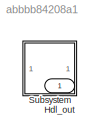
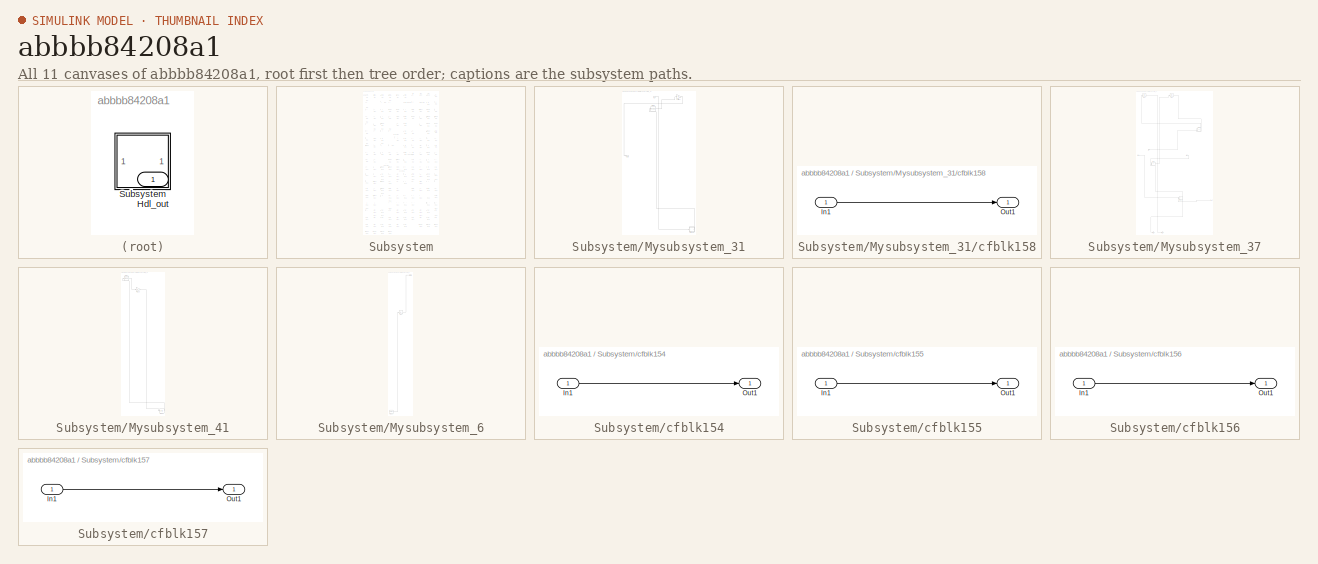
[diagram: thumbnail index - all 11 canvases of the model, root first then tree order]
MODEL slx_abbbb84208a1
KIND model
CONFIG AbsTol = auto
CONFIG EnableMultiTasking = off
CONFIG FixedStep = auto
CONFIG MaxStep = auto
CONFIG MinStep = auto
CONFIG RelTol = 1e-3
CONFIG SampleTimeConstraint = Unconstrained
CONFIG SolverName = VariableStepAuto
CONFIG StartTime = 0.0
CONFIG StopTime = 10.0
BLOCK [Outport] Hdl_out
  OutDataTypeStr = uint8
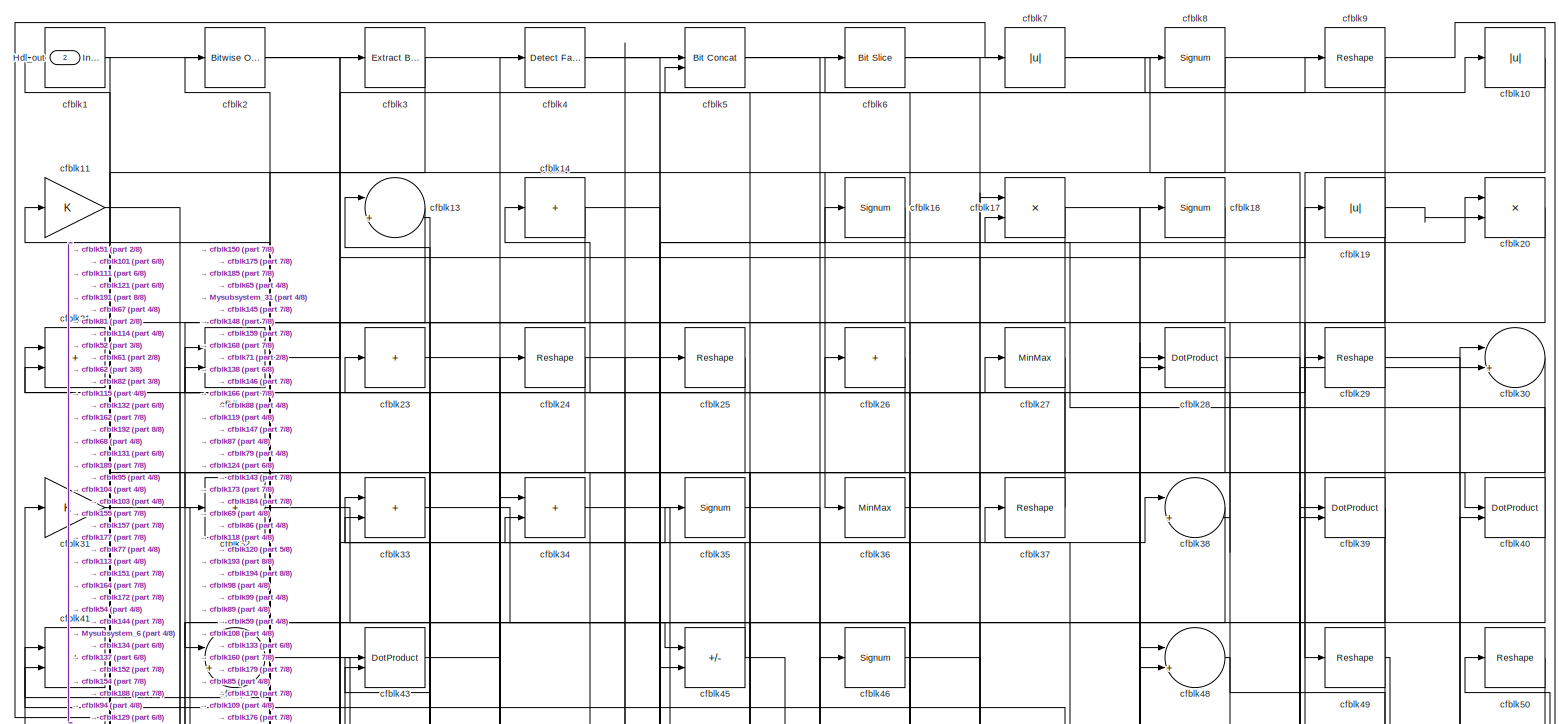
[diagram: Subsystem - part 1/8, full width, top band]
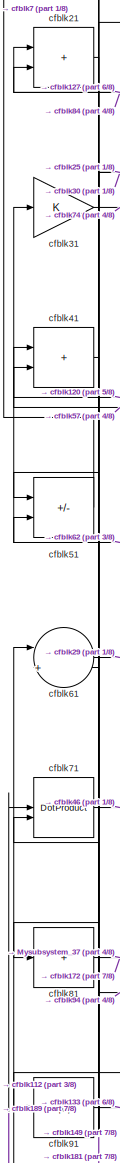
[diagram: Subsystem - part 2/8, top left region]
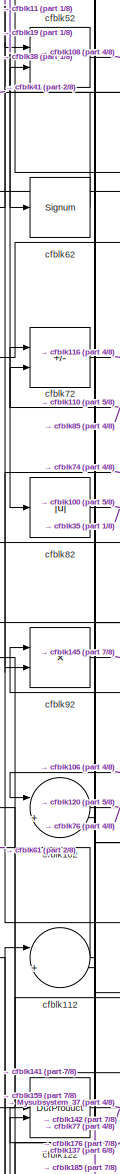
[diagram: Subsystem - part 3/8, middle left region]
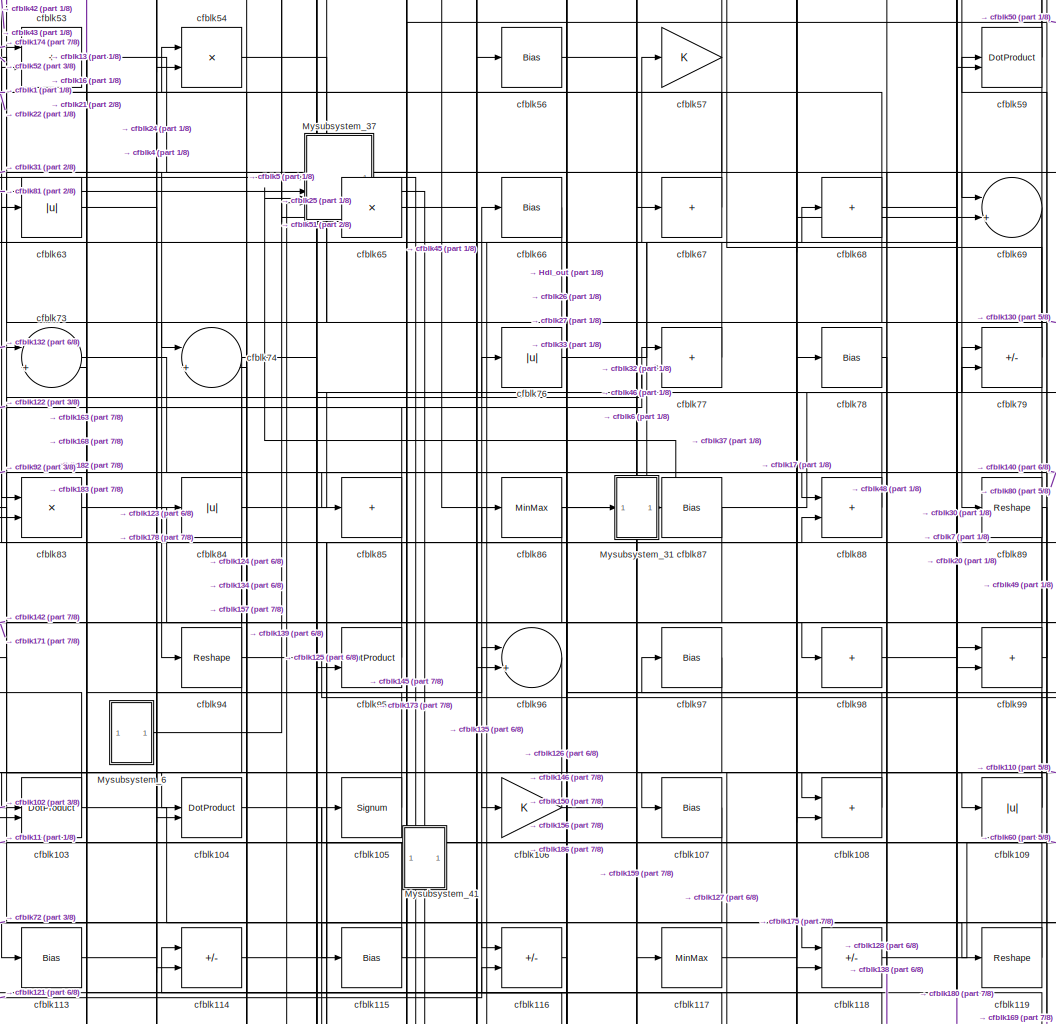
[diagram: Subsystem - part 4/8, central region]
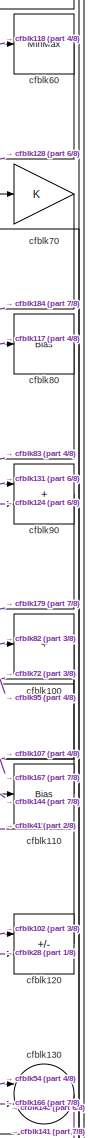
[diagram: Subsystem - part 5/8, middle right region]
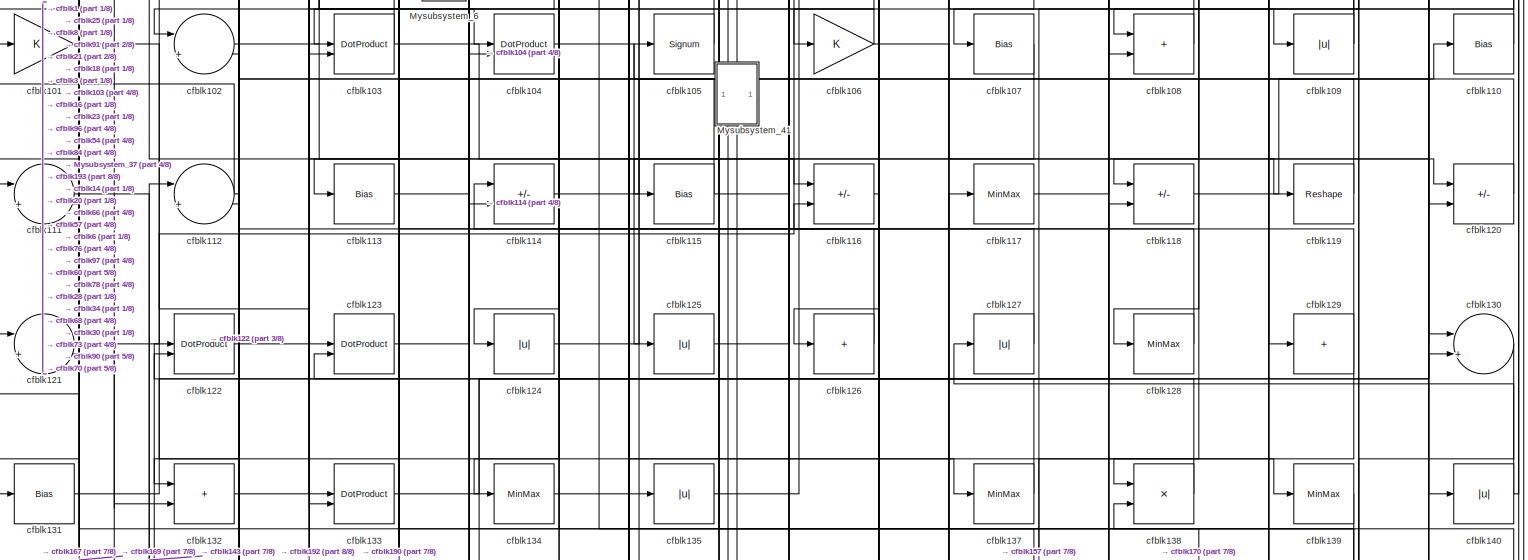
[diagram: Subsystem - part 6/8, full width, middle band]
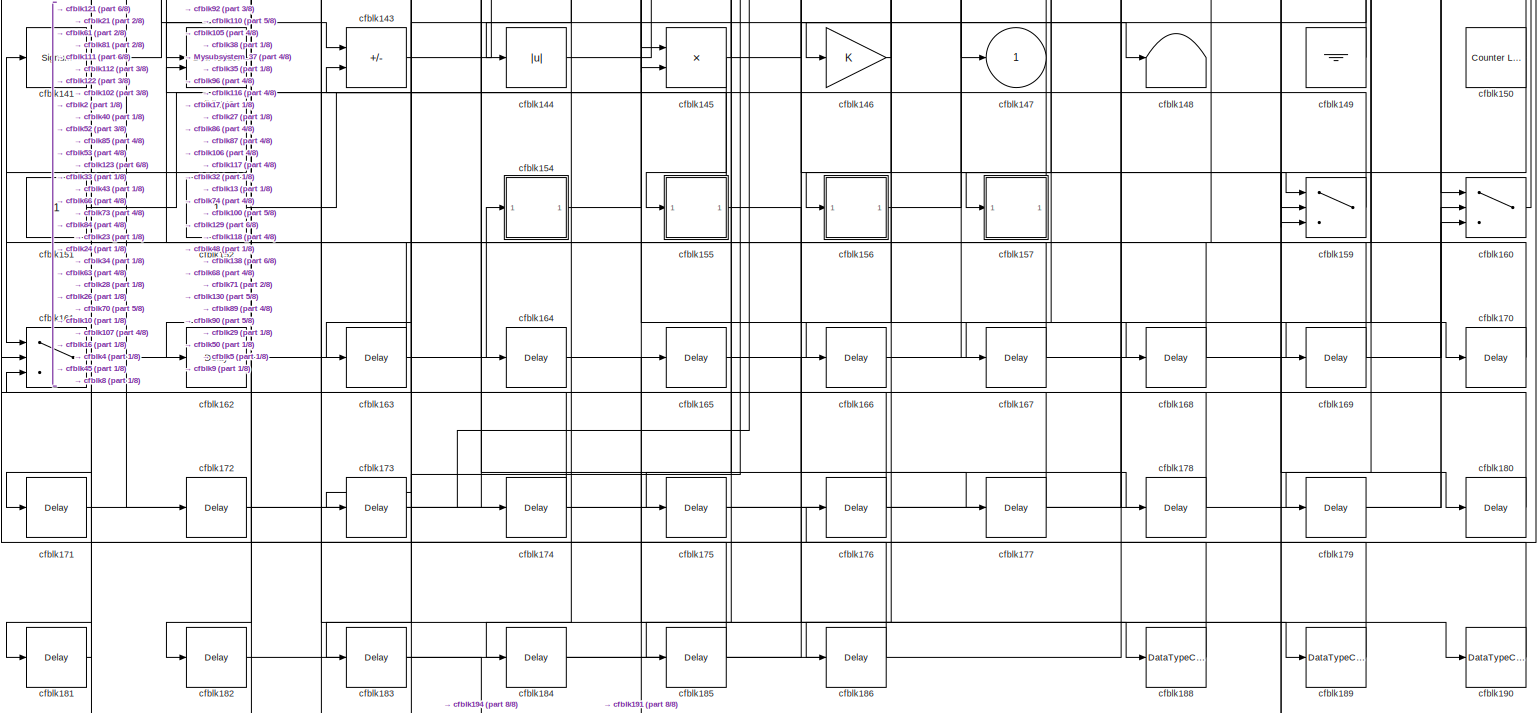
[diagram: Subsystem - part 7/8, full width, bottom band]
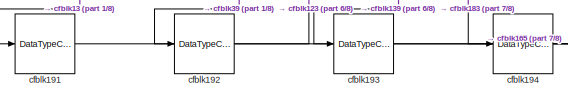
[diagram: Subsystem - part 8/8, bottom left region]
BLOCK [SubSystem] Subsystem
BLOCK [Outport] Subsystem/Hdl_out
  OutDataTypeStr = uint8
  Port = 2
BLOCK [SubSystem] Subsystem/Mysubsystem_31
  RTWFcnName = Mysubsystem_31
  RTWFcnNameOpts = User specified
  RTWFileNameOpts = Use function name
  RTWSystemCode = Reusable function
  TreatAsAtomicUnit = on
BLOCK [Inport] Subsystem/Mysubsystem_31/In1
BLOCK [Outport] Subsystem/Mysubsystem_31/Out1
BLOCK [SubSystem] Subsystem/Mysubsystem_31/cfblk158
  LibrarySourceBlock = hdlsllib/Ports &\nSubsystems/Subsystem
BLOCK [Inport] Subsystem/Mysubsystem_31/cfblk158/In1
BLOCK [Outport] Subsystem/Mysubsystem_31/cfblk158/Out1
BLOCK [Gain] Subsystem/Mysubsystem_31/cfblk47
BLOCK [Reshape] Subsystem/Mysubsystem_31/cfblk55
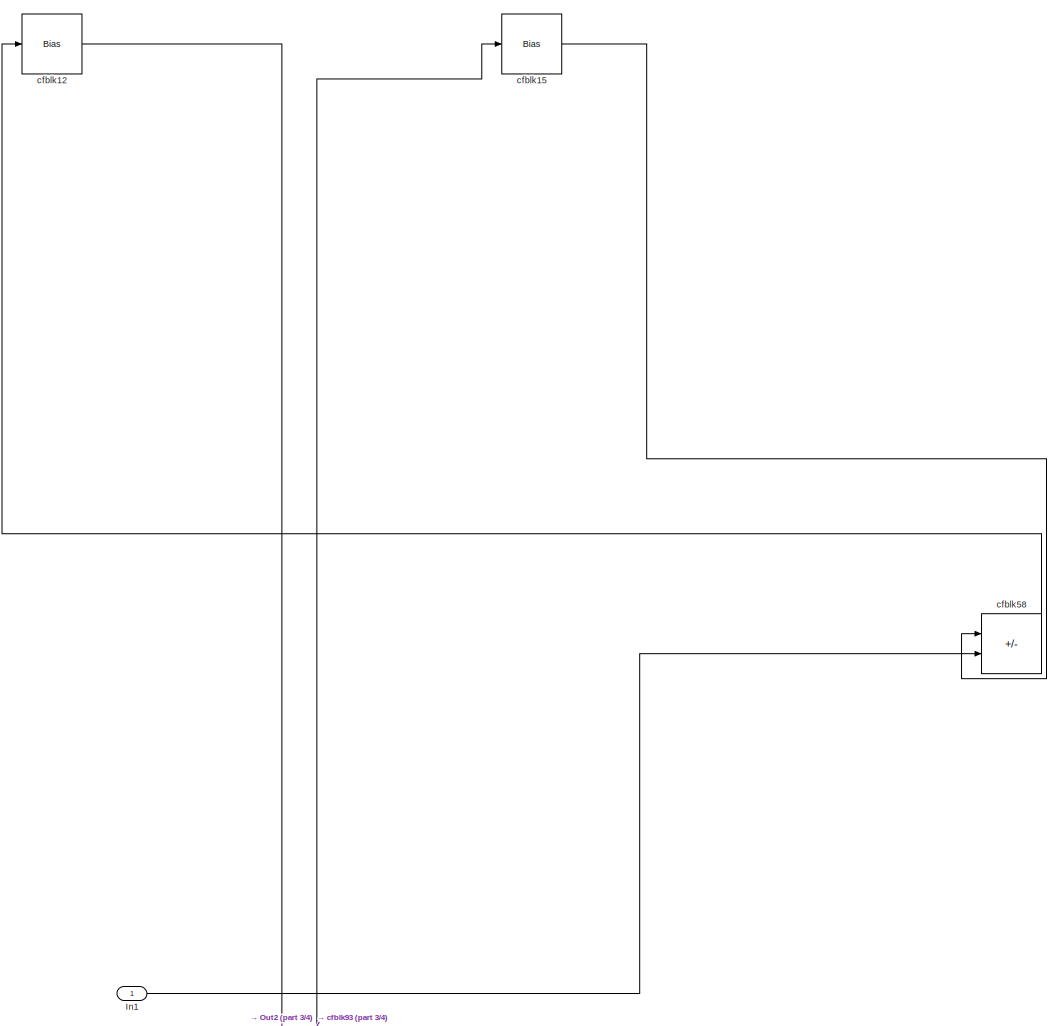
[diagram: Subsystem/Mysubsystem_37 - part 1/4, full width, top band]
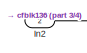
[diagram: Subsystem/Mysubsystem_37 - part 2/4, middle left region]
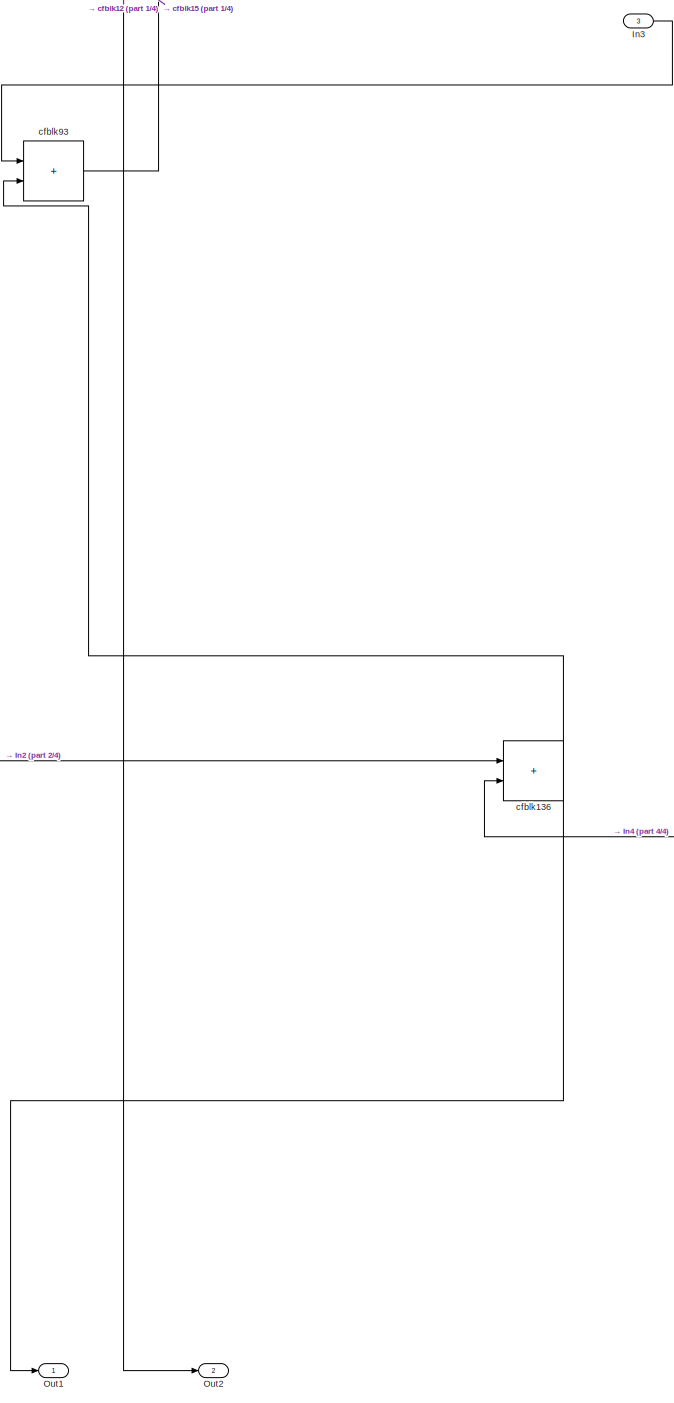
[diagram: Subsystem/Mysubsystem_37 - part 3/4, bottom center region]
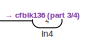
[diagram: Subsystem/Mysubsystem_37 - part 4/4, bottom right region]
BLOCK [SubSystem] Subsystem/Mysubsystem_37
  RTWFcnName = Mysubsystem_37
  RTWFcnNameOpts = User specified
  RTWFileNameOpts = Use function name
  RTWSystemCode = Reusable function
  TreatAsAtomicUnit = on
BLOCK [Inport] Subsystem/Mysubsystem_37/In1
BLOCK [Inport] Subsystem/Mysubsystem_37/In2
  Port = 2
BLOCK [Inport] Subsystem/Mysubsystem_37/In3
  Port = 3
BLOCK [Inport] Subsystem/Mysubsystem_37/In4
  Port = 4
BLOCK [Outport] Subsystem/Mysubsystem_37/Out1
BLOCK [Outport] Subsystem/Mysubsystem_37/Out2
  Port = 2
BLOCK [Bias] Subsystem/Mysubsystem_37/cfblk12
  Bias = 0.0
  SaturateOnIntegerOverflow = off
BLOCK [Sum] Subsystem/Mysubsystem_37/cfblk136
  IconShape = rectangular
BLOCK [Bias] Subsystem/Mysubsystem_37/cfblk15
  Bias = 0.0
  SaturateOnIntegerOverflow = off
BLOCK [Sum] Subsystem/Mysubsystem_37/cfblk58
  IconShape = rectangular
  Inputs = +-
BLOCK [Sum] Subsystem/Mysubsystem_37/cfblk93
  IconShape = rectangular
BLOCK [SubSystem] Subsystem/Mysubsystem_41
  RTWFcnName = Mysubsystem_41
  RTWFcnNameOpts = User specified
  RTWFileNameOpts = Use function name
  RTWSystemCode = Reusable function
  TreatAsAtomicUnit = on
BLOCK [Delay] Subsystem/Mysubsystem_41/cfblk187
  InputPortMap = u0
  SampleTime = 1
BLOCK [Signum] Subsystem/Mysubsystem_41/cfblk64
BLOCK [Gain] Subsystem/Mysubsystem_41/cfblk75
BLOCK [SubSystem] Subsystem/Mysubsystem_6
  RTWFcnName = Mysubsystem_6
  RTWFcnNameOpts = User specified
  RTWFileNameOpts = Use function name
  RTWSystemCode = Reusable function
  TreatAsAtomicUnit = on
BLOCK [Outport] Subsystem/Mysubsystem_6/Out1
BLOCK [Reference] Subsystem/Mysubsystem_6/cfblk153  REF=hdlsllib/Sources/Counter
Limited
  SourceBlock = hdlsllib/Sources/Counter\nLimited
  SourceType = Counter Limited
BLOCK [Abs] Subsystem/Mysubsystem_6/cfblk44
  SaturateOnIntegerOverflow = off
BLOCK [Reference] Subsystem/cfblk1  REF=simulink/Logic and Bit
Operations/Detect
Increase
  LibrarySourceBlock = hdlsllib/Logic and Bit\nOperations/Detect\nIncrease
  SourceBlock = simulink/Logic and Bit\nOperations/Detect\nIncrease
  SourceType = Detect Increase
BLOCK [Abs] Subsystem/cfblk10
  OutDataTypeStr = uint8
  SaturateOnIntegerOverflow = off
BLOCK [Sum] Subsystem/cfblk100
  IconShape = rectangular
  Inputs = +
  OutDataTypeStr = uint8
BLOCK [Gain] Subsystem/cfblk101
  OutDataTypeStr = uint8
BLOCK [Sum] Subsystem/cfblk102
  Inputs = |++
  OutDataTypeStr = uint8
BLOCK [DotProduct] Subsystem/cfblk103
  OutDataTypeStr = uint8
BLOCK [DotProduct] Subsystem/cfblk104
  OutDataTypeStr = uint8
BLOCK [Signum] Subsystem/cfblk105
BLOCK [Gain] Subsystem/cfblk106
  OutDataTypeStr = uint8
BLOCK [Bias] Subsystem/cfblk107
  Bias = 0.0
  SaturateOnIntegerOverflow = off
BLOCK [Sum] Subsystem/cfblk108
  IconShape = rectangular
  OutDataTypeStr = uint8
BLOCK [Abs] Subsystem/cfblk109
  OutDataTypeStr = uint8
  SaturateOnIntegerOverflow = off
BLOCK [Gain] Subsystem/cfblk11
  OutDataTypeStr = uint8
BLOCK [Bias] Subsystem/cfblk110
  Bias = 0.0
  SaturateOnIntegerOverflow = off
BLOCK [Sum] Subsystem/cfblk111
  Inputs = |++
  OutDataTypeStr = uint8
BLOCK [Sum] Subsystem/cfblk112
  Inputs = |++
  OutDataTypeStr = uint8
BLOCK [Bias] Subsystem/cfblk113
  Bias = 0.0
  SaturateOnIntegerOverflow = off
BLOCK [Sum] Subsystem/cfblk114
  IconShape = rectangular
  Inputs = +-
  OutDataTypeStr = uint8
BLOCK [Bias] Subsystem/cfblk115
  Bias = 0.0
  SaturateOnIntegerOverflow = off
BLOCK [Sum] Subsystem/cfblk116
  IconShape = rectangular
  Inputs = +-
  OutDataTypeStr = uint8
BLOCK [MinMax] Subsystem/cfblk117
  OutDataTypeStr = uint8
BLOCK [Sum] Subsystem/cfblk118
  IconShape = rectangular
  Inputs = +-
  OutDataTypeStr = uint8
BLOCK [Reshape] Subsystem/cfblk119
BLOCK [Sum] Subsystem/cfblk120
  IconShape = rectangular
  Inputs = +-
  OutDataTypeStr = uint8
BLOCK [Sum] Subsystem/cfblk121
  Inputs = |++
  OutDataTypeStr = uint8
BLOCK [DotProduct] Subsystem/cfblk122
  OutDataTypeStr = uint8
BLOCK [DotProduct] Subsystem/cfblk123
  OutDataTypeStr = uint8
BLOCK [Abs] Subsystem/cfblk124
  OutDataTypeStr = uint8
  SaturateOnIntegerOverflow = off
BLOCK [Abs] Subsystem/cfblk125
  OutDataTypeStr = uint8
  SaturateOnIntegerOverflow = off
BLOCK [Sum] Subsystem/cfblk126
  IconShape = rectangular
  Inputs = +
  OutDataTypeStr = uint8
BLOCK [Abs] Subsystem/cfblk127
  OutDataTypeStr = uint8
  SaturateOnIntegerOverflow = off
BLOCK [MinMax] Subsystem/cfblk128
  OutDataTypeStr = uint8
BLOCK [Sum] Subsystem/cfblk129
  IconShape = rectangular
  Inputs = +
  OutDataTypeStr = uint8
BLOCK [Sum] Subsystem/cfblk13
  Inputs = |++
  OutDataTypeStr = uint8
BLOCK [Sum] Subsystem/cfblk130
  Inputs = |++
  OutDataTypeStr = uint8
BLOCK [Bias] Subsystem/cfblk131
  Bias = 0.0
  SaturateOnIntegerOverflow = off
BLOCK [Sum] Subsystem/cfblk132
  IconShape = rectangular
  OutDataTypeStr = uint8
BLOCK [DotProduct] Subsystem/cfblk133
  OutDataTypeStr = uint8
BLOCK [MinMax] Subsystem/cfblk134
  OutDataTypeStr = uint8
BLOCK [Abs] Subsystem/cfblk135
  OutDataTypeStr = uint8
  SaturateOnIntegerOverflow = off
BLOCK [MinMax] Subsystem/cfblk137
  OutDataTypeStr = uint8
BLOCK [Product] Subsystem/cfblk138
  Inputs = */
  OutDataTypeStr = uint8
  RndMeth = Zero
  SaturateOnIntegerOverflow = on
BLOCK [MinMax] Subsystem/cfblk139
  OutDataTypeStr = uint8
BLOCK [Sum] Subsystem/cfblk14
  IconShape = rectangular
  Inputs = +
  OutDataTypeStr = uint8
BLOCK [Abs] Subsystem/cfblk140
  OutDataTypeStr = uint8
  SaturateOnIntegerOverflow = off
BLOCK [Signum] Subsystem/cfblk141
BLOCK [DotProduct] Subsystem/cfblk142
  OutDataTypeStr = uint8
BLOCK [Sum] Subsystem/cfblk143
  IconShape = rectangular
  Inputs = +-
  OutDataTypeStr = uint8
BLOCK [Abs] Subsystem/cfblk144
  OutDataTypeStr = uint8
  SaturateOnIntegerOverflow = off
BLOCK [Product] Subsystem/cfblk145
  Inputs = */
  OutDataTypeStr = uint8
  RndMeth = Zero
  SaturateOnIntegerOverflow = on
BLOCK [Gain] Subsystem/cfblk146
  OutDataTypeStr = uint8
BLOCK [Outport] Subsystem/cfblk147
  OutDataTypeStr = uint8
  VectorParamsAs1DForOutWhenUnconnected = off
BLOCK [Terminator] Subsystem/cfblk148
BLOCK [Ground] Subsystem/cfblk149
BLOCK [Reference] Subsystem/cfblk150  REF=hdlsllib/Sources/Counter
Limited
  SourceBlock = hdlsllib/Sources/Counter\nLimited
  SourceType = Counter Limited
BLOCK [Constant] Subsystem/cfblk151
  OutDataTypeStr = uint8
  SampleTime = -1
BLOCK [Constant] Subsystem/cfblk152
  OutDataTypeStr = uint8
  SampleTime = -1
BLOCK [SubSystem] Subsystem/cfblk154
  LibrarySourceBlock = hdlsllib/Ports &\nSubsystems/Subsystem
BLOCK [Inport] Subsystem/cfblk154/In1
BLOCK [Outport] Subsystem/cfblk154/Out1
BLOCK [SubSystem] Subsystem/cfblk155
  LibrarySourceBlock = hdlsllib/Ports &\nSubsystems/Subsystem
BLOCK [Inport] Subsystem/cfblk155/In1
BLOCK [Outport] Subsystem/cfblk155/Out1
BLOCK [SubSystem] Subsystem/cfblk156
  LibrarySourceBlock = hdlsllib/Ports &\nSubsystems/Subsystem
BLOCK [Inport] Subsystem/cfblk156/In1
BLOCK [Outport] Subsystem/cfblk156/Out1
BLOCK [SubSystem] Subsystem/cfblk157
  LibrarySourceBlock = hdlsllib/Ports &\nSubsystems/Subsystem
BLOCK [Inport] Subsystem/cfblk157/In1
BLOCK [Outport] Subsystem/cfblk157/Out1
BLOCK [Switch] Subsystem/cfblk159
  InputSameDT = off
  OutDataTypeStr = uint8
  SaturateOnIntegerOverflow = off
BLOCK [Signum] Subsystem/cfblk16
BLOCK [Switch] Subsystem/cfblk160
  InputSameDT = off
  OutDataTypeStr = uint8
  SaturateOnIntegerOverflow = off
BLOCK [Switch] Subsystem/cfblk161
  InputSameDT = off
  OutDataTypeStr = uint8
  SaturateOnIntegerOverflow = off
BLOCK [Delay] Subsystem/cfblk162
  InputPortMap = u0
  SampleTime = 1
BLOCK [Delay] Subsystem/cfblk163
  InputPortMap = u0
  SampleTime = 1
BLOCK [Delay] Subsystem/cfblk164
  InputPortMap = u0
  SampleTime = 1
BLOCK [Delay] Subsystem/cfblk165
  InputPortMap = u0
  SampleTime = 1
BLOCK [Delay] Subsystem/cfblk166
  InputPortMap = u0
  SampleTime = 1
BLOCK [Delay] Subsystem/cfblk167
  InputPortMap = u0
  SampleTime = 1
BLOCK [Delay] Subsystem/cfblk168
  InputPortMap = u0
  SampleTime = 1
BLOCK [Delay] Subsystem/cfblk169
  InputPortMap = u0
  SampleTime = 1
BLOCK [Product] Subsystem/cfblk17
  Inputs = */
  OutDataTypeStr = uint8
  RndMeth = Zero
  SaturateOnIntegerOverflow = on
BLOCK [Delay] Subsystem/cfblk170
  InputPortMap = u0
  SampleTime = 1
BLOCK [Delay] Subsystem/cfblk171
  InputPortMap = u0
  SampleTime = 1
BLOCK [Delay] Subsystem/cfblk172
  InputPortMap = u0
  SampleTime = 1
BLOCK [Delay] Subsystem/cfblk173
  InputPortMap = u0
  SampleTime = 1
BLOCK [Delay] Subsystem/cfblk174
  InputPortMap = u0
  SampleTime = 1
BLOCK [Delay] Subsystem/cfblk175
  InputPortMap = u0
  SampleTime = 1
BLOCK [Delay] Subsystem/cfblk176
  InputPortMap = u0
  SampleTime = 1
BLOCK [Delay] Subsystem/cfblk177
  InputPortMap = u0
  SampleTime = 1
BLOCK [Delay] Subsystem/cfblk178
  InputPortMap = u0
  SampleTime = 1
BLOCK [Delay] Subsystem/cfblk179
  InputPortMap = u0
  SampleTime = 1
BLOCK [Signum] Subsystem/cfblk18
BLOCK [Delay] Subsystem/cfblk180
  InputPortMap = u0
  SampleTime = 1
BLOCK [Delay] Subsystem/cfblk181
  InputPortMap = u0
  SampleTime = 1
BLOCK [Delay] Subsystem/cfblk182
  InputPortMap = u0
  SampleTime = 1
BLOCK [Delay] Subsystem/cfblk183
  InputPortMap = u0
  SampleTime = 1
BLOCK [Delay] Subsystem/cfblk184
  InputPortMap = u0
  SampleTime = 1
BLOCK [Delay] Subsystem/cfblk185
  InputPortMap = u0
  SampleTime = 1
BLOCK [Delay] Subsystem/cfblk186
  InputPortMap = u0
  SampleTime = 1
BLOCK [DataTypeConversion] Subsystem/cfblk188
  OutDataTypeStr = uint8
  RndMeth = Floor
  SaturateOnIntegerOverflow = off
BLOCK [DataTypeConversion] Subsystem/cfblk189
  OutDataTypeStr = uint8
  RndMeth = Floor
  SaturateOnIntegerOverflow = off
BLOCK [Abs] Subsystem/cfblk19
  OutDataTypeStr = uint8
  SaturateOnIntegerOverflow = off
BLOCK [DataTypeConversion] Subsystem/cfblk190
  OutDataTypeStr = uint8
  RndMeth = Floor
  SaturateOnIntegerOverflow = off
BLOCK [DataTypeConversion] Subsystem/cfblk191
  OutDataTypeStr = uint8
  RndMeth = Floor
  SaturateOnIntegerOverflow = off
BLOCK [DataTypeConversion] Subsystem/cfblk192
  OutDataTypeStr = uint8
  RndMeth = Floor
  SaturateOnIntegerOverflow = off
BLOCK [DataTypeConversion] Subsystem/cfblk193
  OutDataTypeStr = uint8
  RndMeth = Floor
  SaturateOnIntegerOverflow = off
BLOCK [DataTypeConversion] Subsystem/cfblk194
  OutDataTypeStr = uint8
  RndMeth = Floor
  SaturateOnIntegerOverflow = off
BLOCK [Reference] Subsystem/cfblk2  REF=simulink/Logic and Bit
Operations/Bitwise
Operator
  LibrarySourceBlock = hdlsllib/Logic and Bit\nOperations/Bitwise\nOperator
  SourceBlock = simulink/Logic and Bit\nOperations/Bitwise\nOperator
  SourceType = Bitwise Operator
BLOCK [Product] Subsystem/cfblk20
  Inputs = */
  OutDataTypeStr = uint8
  RndMeth = Zero
  SaturateOnIntegerOverflow = on
BLOCK [Sum] Subsystem/cfblk21
  IconShape = rectangular
  OutDataTypeStr = uint8
BLOCK [Sum] Subsystem/cfblk22
  IconShape = rectangular
  OutDataTypeStr = uint8
BLOCK [Sum] Subsystem/cfblk23
  IconShape = rectangular
  Inputs = +
  OutDataTypeStr = uint8
BLOCK [Reshape] Subsystem/cfblk24
BLOCK [Reshape] Subsystem/cfblk25
BLOCK [Sum] Subsystem/cfblk26
  IconShape = rectangular
  Inputs = +
  OutDataTypeStr = uint8
BLOCK [MinMax] Subsystem/cfblk27
  OutDataTypeStr = uint8
BLOCK [DotProduct] Subsystem/cfblk28
  OutDataTypeStr = uint8
BLOCK [Reshape] Subsystem/cfblk29
BLOCK [Reference] Subsystem/cfblk3  REF=simulink/Logic and Bit
Operations/Extract Bits
  LibrarySourceBlock = hdlsllib/Logic and Bit\nOperations/Extract Bits
  SourceBlock = simulink/Logic and Bit\nOperations/Extract Bits
  SourceType = Extract Bits
BLOCK [Sum] Subsystem/cfblk30
  Inputs = |++
  OutDataTypeStr = uint8
BLOCK [Gain] Subsystem/cfblk31
  OutDataTypeStr = uint8
BLOCK [Sum] Subsystem/cfblk32
  IconShape = rectangular
  Inputs = +
  OutDataTypeStr = uint8
BLOCK [Sum] Subsystem/cfblk33
  IconShape = rectangular
  OutDataTypeStr = uint8
BLOCK [Sum] Subsystem/cfblk34
  IconShape = rectangular
  OutDataTypeStr = uint8
BLOCK [Signum] Subsystem/cfblk35
BLOCK [MinMax] Subsystem/cfblk36
  OutDataTypeStr = uint8
BLOCK [Reshape] Subsystem/cfblk37
BLOCK [Sum] Subsystem/cfblk38
  Inputs = |++
  OutDataTypeStr = uint8
BLOCK [DotProduct] Subsystem/cfblk39
  OutDataTypeStr = uint8
BLOCK [Reference] Subsystem/cfblk4  REF=hdlsllib/Logic and Bit
Operations/Detect Fall
Nonpositive
  SourceBlock = hdlsllib/Logic and Bit\nOperations/Detect Fall\nNonpositive
  SourceType = Detect Fall Nonpositive
BLOCK [DotProduct] Subsystem/cfblk40
  OutDataTypeStr = uint8
BLOCK [Sum] Subsystem/cfblk41
  IconShape = rectangular
  OutDataTypeStr = uint8
BLOCK [Sum] Subsystem/cfblk42
  Inputs = |++
  OutDataTypeStr = uint8
BLOCK [DotProduct] Subsystem/cfblk43
  OutDataTypeStr = uint8
BLOCK [Sum] Subsystem/cfblk45
  IconShape = rectangular
  Inputs = +-
  OutDataTypeStr = uint8
BLOCK [Signum] Subsystem/cfblk46
BLOCK [Sum] Subsystem/cfblk48
  Inputs = |++
  OutDataTypeStr = uint8
BLOCK [Reshape] Subsystem/cfblk49
BLOCK [Reference] Subsystem/cfblk5  REF=hdlsllib/Logic and Bit
Operations/Bit Concat
  SourceBlock = hdlsllib/Logic and Bit\nOperations/Bit Concat
  SourceType = Bit Concat
BLOCK [Reshape] Subsystem/cfblk50
BLOCK [Sum] Subsystem/cfblk51
  IconShape = rectangular
  Inputs = +-
  OutDataTypeStr = uint8
BLOCK [Product] Subsystem/cfblk52
  Inputs = */
  OutDataTypeStr = uint8
  RndMeth = Zero
  SaturateOnIntegerOverflow = on
BLOCK [Sum] Subsystem/cfblk53
  IconShape = rectangular
  OutDataTypeStr = uint8
BLOCK [Product] Subsystem/cfblk54
  Inputs = */
  OutDataTypeStr = uint8
  RndMeth = Zero
  SaturateOnIntegerOverflow = on
BLOCK [Bias] Subsystem/cfblk56
  Bias = 0.0
  SaturateOnIntegerOverflow = off
BLOCK [Gain] Subsystem/cfblk57
  OutDataTypeStr = uint8
BLOCK [DotProduct] Subsystem/cfblk59
  OutDataTypeStr = uint8
BLOCK [Reference] Subsystem/cfblk6  REF=hdlsllib/Logic and Bit
Operations/Bit Slice
  SourceBlock = hdlsllib/Logic and Bit\nOperations/Bit Slice
  SourceType = Bit Slice
BLOCK [MinMax] Subsystem/cfblk60
  OutDataTypeStr = uint8
BLOCK [Sum] Subsystem/cfblk61
  Inputs = |++
  OutDataTypeStr = uint8
BLOCK [Signum] Subsystem/cfblk62
BLOCK [Abs] Subsystem/cfblk63
  OutDataTypeStr = uint8
  SaturateOnIntegerOverflow = off
BLOCK [Product] Subsystem/cfblk65
  Inputs = */
  OutDataTypeStr = uint8
  RndMeth = Zero
  SaturateOnIntegerOverflow = on
BLOCK [Bias] Subsystem/cfblk66
  Bias = 0.0
  SaturateOnIntegerOverflow = off
BLOCK [Sum] Subsystem/cfblk67
  IconShape = rectangular
  Inputs = +
  OutDataTypeStr = uint8
BLOCK [Sum] Subsystem/cfblk68
  IconShape = rectangular
  Inputs = +
  OutDataTypeStr = uint8
BLOCK [Sum] Subsystem/cfblk69
  Inputs = |++
  OutDataTypeStr = uint8
BLOCK [Abs] Subsystem/cfblk7
  OutDataTypeStr = uint8
  SaturateOnIntegerOverflow = off
BLOCK [Gain] Subsystem/cfblk70
  OutDataTypeStr = uint8
BLOCK [DotProduct] Subsystem/cfblk71
  OutDataTypeStr = uint8
BLOCK [Sum] Subsystem/cfblk72
  IconShape = rectangular
  Inputs = +-
  OutDataTypeStr = uint8
BLOCK [Sum] Subsystem/cfblk73
  Inputs = |++
  OutDataTypeStr = uint8
BLOCK [Sum] Subsystem/cfblk74
  Inputs = |++
  OutDataTypeStr = uint8
BLOCK [Abs] Subsystem/cfblk76
  OutDataTypeStr = uint8
  SaturateOnIntegerOverflow = off
BLOCK [Sum] Subsystem/cfblk77
  IconShape = rectangular
  OutDataTypeStr = uint8
BLOCK [Bias] Subsystem/cfblk78
  Bias = 0.0
  SaturateOnIntegerOverflow = off
BLOCK [Sum] Subsystem/cfblk79
  IconShape = rectangular
  Inputs = +-
  OutDataTypeStr = uint8
BLOCK [Signum] Subsystem/cfblk8
BLOCK [Bias] Subsystem/cfblk80
  Bias = 0.0
  SaturateOnIntegerOverflow = off
BLOCK [Sum] Subsystem/cfblk81
  IconShape = rectangular
  Inputs = +
  OutDataTypeStr = uint8
BLOCK [Abs] Subsystem/cfblk82
  OutDataTypeStr = uint8
  SaturateOnIntegerOverflow = off
BLOCK [Product] Subsystem/cfblk83
  Inputs = */
  OutDataTypeStr = uint8
  RndMeth = Zero
  SaturateOnIntegerOverflow = on
BLOCK [Abs] Subsystem/cfblk84
  OutDataTypeStr = uint8
  SaturateOnIntegerOverflow = off
BLOCK [Sum] Subsystem/cfblk85
  IconShape = rectangular
  Inputs = +
  OutDataTypeStr = uint8
BLOCK [MinMax] Subsystem/cfblk86
  OutDataTypeStr = uint8
BLOCK [Bias] Subsystem/cfblk87
  Bias = 0.0
  SaturateOnIntegerOverflow = off
BLOCK [Sum] Subsystem/cfblk88
  IconShape = rectangular
  OutDataTypeStr = uint8
BLOCK [Reshape] Subsystem/cfblk89
BLOCK [Reshape] Subsystem/cfblk9
BLOCK [Sum] Subsystem/cfblk90
  IconShape = rectangular
  OutDataTypeStr = uint8
BLOCK [Abs] Subsystem/cfblk91
  OutDataTypeStr = uint8
  SaturateOnIntegerOverflow = off
BLOCK [Product] Subsystem/cfblk92
  Inputs = */
  OutDataTypeStr = uint8
  RndMeth = Zero
  SaturateOnIntegerOverflow = on
BLOCK [Reshape] Subsystem/cfblk94
BLOCK [DotProduct] Subsystem/cfblk95
  OutDataTypeStr = uint8
BLOCK [Sum] Subsystem/cfblk96
  Inputs = |++
  OutDataTypeStr = uint8
BLOCK [Bias] Subsystem/cfblk97
  Bias = 0.0
  SaturateOnIntegerOverflow = off
BLOCK [Sum] Subsystem/cfblk98
  IconShape = rectangular
  Inputs = +
  OutDataTypeStr = uint8
BLOCK [Sum] Subsystem/cfblk99
  IconShape = rectangular
  OutDataTypeStr = uint8
LINE Subsystem/Mysubsystem_31/In1:1 -> Subsystem/Mysubsystem_31/cfblk158:1
LINE Subsystem/Mysubsystem_31/cfblk158/In1:1 -> Subsystem/Mysubsystem_31/cfblk158/Out1:1
LINE Subsystem/Mysubsystem_31/cfblk158:1 -> Subsystem/Mysubsystem_31/cfblk55:1
LINE Subsystem/Mysubsystem_31/cfblk47:1 -> Subsystem/Mysubsystem_31/Out1:1
LINE Subsystem/Mysubsystem_31/cfblk55:1 -> Subsystem/Mysubsystem_31/cfblk47:1
LINE Subsystem/Mysubsystem_31:1 -> Subsystem/Mysubsystem_37:3
LINE Subsystem/Mysubsystem_37/In1:1 -> Subsystem/Mysubsystem_37/cfblk58:2
LINE Subsystem/Mysubsystem_37/In2:1 -> Subsystem/Mysubsystem_37/cfblk136:1
LINE Subsystem/Mysubsystem_37/In3:1 -> Subsystem/Mysubsystem_37/cfblk93:1
LINE Subsystem/Mysubsystem_37/In4:1 -> Subsystem/Mysubsystem_37/cfblk136:2
LINE Subsystem/Mysubsystem_37/cfblk12:1 -> Subsystem/Mysubsystem_37/Out2:1
NET Subsystem/Mysubsystem_37/cfblk136:1 -> Subsystem/Mysubsystem_37/Out1:1, Subsystem/Mysubsystem_37/cfblk93:2
LINE Subsystem/Mysubsystem_37/cfblk15:1 -> Subsystem/Mysubsystem_37/cfblk58:1
LINE Subsystem/Mysubsystem_37/cfblk58:1 -> Subsystem/Mysubsystem_37/cfblk12:1
LINE Subsystem/Mysubsystem_37/cfblk93:1 -> Subsystem/Mysubsystem_37/cfblk15:1
LINE Subsystem/Mysubsystem_37:1 -> Subsystem/cfblk173:1
LINE Subsystem/Mysubsystem_37:2 -> Subsystem/cfblk174:1
LINE Subsystem/Mysubsystem_41/cfblk187:1 -> Subsystem/Mysubsystem_41/cfblk64:1
LINE Subsystem/Mysubsystem_41/cfblk64:1 -> Subsystem/Mysubsystem_41/cfblk75:1
LINE Subsystem/Mysubsystem_41/cfblk75:1 -> Subsystem/Mysubsystem_41/cfblk187:1
LINE Subsystem/Mysubsystem_6/cfblk153:1 -> Subsystem/Mysubsystem_6/cfblk44:1
LINE Subsystem/Mysubsystem_6/cfblk44:1 -> Subsystem/Mysubsystem_6/Out1:1
LINE Subsystem/Mysubsystem_6:1 -> Subsystem/cfblk5:1
LINE Subsystem/cfblk100:1 -> Subsystem/cfblk167:1
LINE Subsystem/cfblk101:1 -> Subsystem/cfblk139:1
NET Subsystem/cfblk102:1 -> Subsystem/cfblk120:1, Subsystem/cfblk76:1
NET Subsystem/cfblk103:1 -> Subsystem/cfblk135:1, Subsystem/cfblk42:2
LINE Subsystem/cfblk104:1 -> Subsystem/cfblk125:1
LINE Subsystem/cfblk105:1 -> Subsystem/cfblk63:1
NET Subsystem/cfblk106:1 -> Subsystem/cfblk102:1, Subsystem/cfblk159:3
LINE Subsystem/cfblk107:1 -> Subsystem/cfblk145:2
LINE Subsystem/cfblk108:1 -> Subsystem/cfblk97:1
NET Subsystem/cfblk109:1 -> Subsystem/Hdl_out:1, Subsystem/cfblk33:1
LINE Subsystem/cfblk10:1 -> Subsystem/cfblk49:1
NET Subsystem/cfblk110:1 -> Subsystem/cfblk107:1, Subsystem/cfblk72:2, Subsystem/cfblk95:1
LINE Subsystem/cfblk111:1 -> Subsystem/cfblk143:1
NET Subsystem/cfblk112:1 -> Subsystem/cfblk61:1, Subsystem/cfblk92:1
LINE Subsystem/cfblk113:1 -> Subsystem/cfblk4:1
LINE Subsystem/cfblk114:1 -> Subsystem/cfblk78:1
NET Subsystem/cfblk115:1 -> Subsystem/cfblk11:1, Subsystem/cfblk88:2
LINE Subsystem/cfblk116:1 -> Subsystem/cfblk156:1
LINE Subsystem/cfblk117:1 -> Subsystem/cfblk80:1
LINE Subsystem/cfblk118:1 -> Subsystem/cfblk60:1
LINE Subsystem/cfblk119:1 -> Subsystem/cfblk53:2
NET Subsystem/cfblk11:1 -> Subsystem/cfblk114:2, Subsystem/cfblk52:1
LINE Subsystem/cfblk120:1 -> Subsystem/cfblk41:1
NET Subsystem/cfblk121:1 -> Subsystem/cfblk132:2, Subsystem/cfblk66:1
NET Subsystem/cfblk122:1 -> Subsystem/Mysubsystem_37:1, Subsystem/cfblk77:1
LINE Subsystem/cfblk123:1 -> Subsystem/cfblk96:1
NET Subsystem/cfblk124:1 -> Subsystem/cfblk18:1, Subsystem/cfblk90:2
LINE Subsystem/cfblk125:1 -> Subsystem/cfblk68:1
LINE Subsystem/cfblk126:1 -> Subsystem/cfblk54:1
NET Subsystem/cfblk127:1 -> Subsystem/cfblk21:1, Subsystem/cfblk84:1
LINE Subsystem/cfblk128:1 -> Subsystem/cfblk114:1
NET Subsystem/cfblk129:1 -> Subsystem/cfblk157:1, Subsystem/cfblk23:1
LINE Subsystem/cfblk130:1 -> Subsystem/cfblk141:1
NET Subsystem/cfblk131:1 -> Subsystem/cfblk3:1, Subsystem/cfblk90:1
LINE Subsystem/cfblk132:1 -> Subsystem/cfblk73:1
LINE Subsystem/cfblk133:1 -> Subsystem/cfblk30:1
LINE Subsystem/cfblk134:1 -> Subsystem/cfblk20:1
LINE Subsystem/cfblk135:1 -> Subsystem/cfblk57:1
LINE Subsystem/cfblk137:1 -> Subsystem/cfblk122:2
LINE Subsystem/cfblk138:1 -> Subsystem/cfblk6:1
NET Subsystem/cfblk139:1 -> Subsystem/Mysubsystem_37:4, Subsystem/cfblk193:1
LINE Subsystem/cfblk13:1 -> Subsystem/cfblk191:1
NET Subsystem/cfblk140:1 -> Subsystem/cfblk127:1, Subsystem/cfblk70:1
LINE Subsystem/cfblk141:1 -> Subsystem/cfblk112:1
NET Subsystem/cfblk142:1 -> Subsystem/cfblk161:1, Subsystem/cfblk52:2
LINE Subsystem/cfblk143:1 -> Subsystem/cfblk28:1
LINE Subsystem/cfblk144:1 -> Subsystem/cfblk110:1
NET Subsystem/cfblk145:1 -> Subsystem/cfblk105:1, Subsystem/cfblk155:1, Subsystem/cfblk38:1
LINE Subsystem/cfblk146:1 -> Subsystem/cfblk86:1
LINE Subsystem/cfblk149:1 -> Subsystem/cfblk71:2
NET Subsystem/cfblk14:1 -> Subsystem/cfblk137:1, Subsystem/cfblk42:1
NET Subsystem/cfblk150:1 -> Subsystem/cfblk116:2, Subsystem/cfblk159:2, Subsystem/cfblk5:2
LINE Subsystem/cfblk151:1 -> Subsystem/cfblk24:1
LINE Subsystem/cfblk152:1 -> Subsystem/cfblk45:2
LINE Subsystem/cfblk154/In1:1 -> Subsystem/cfblk154/Out1:1
NET Subsystem/cfblk154:1 -> Subsystem/cfblk10:1, Subsystem/cfblk16:1, Subsystem/cfblk8:1
LINE Subsystem/cfblk155/In1:1 -> Subsystem/cfblk155/Out1:1
NET Subsystem/cfblk155:1 -> Subsystem/cfblk177:1, Subsystem/cfblk43:2
LINE Subsystem/cfblk156/In1:1 -> Subsystem/cfblk156/Out1:1
LINE Subsystem/cfblk156:1 -> Subsystem/cfblk117:1
LINE Subsystem/cfblk157/In1:1 -> Subsystem/cfblk157/Out1:1
NET Subsystem/cfblk157:1 -> Subsystem/cfblk13:1, Subsystem/cfblk74:2
LINE Subsystem/cfblk159:1 -> Subsystem/cfblk122:1
LINE Subsystem/cfblk160:1 -> Subsystem/cfblk50:1
LINE Subsystem/cfblk161:1 -> Subsystem/cfblk154:1
LINE Subsystem/cfblk162:1 -> Subsystem/cfblk160:2
LINE Subsystem/cfblk163:1 -> Subsystem/cfblk142:2
LINE Subsystem/cfblk164:1 -> Subsystem/cfblk17:1
LINE Subsystem/cfblk165:1 -> Subsystem/cfblk190:1
LINE Subsystem/cfblk166:1 -> Subsystem/cfblk130:2
LINE Subsystem/cfblk167:1 -> Subsystem/cfblk111:2
LINE Subsystem/cfblk168:1 -> Subsystem/cfblk73:2
LINE Subsystem/cfblk169:1 -> Subsystem/cfblk121:1
NET Subsystem/cfblk16:1 -> Subsystem/cfblk103:1, Subsystem/cfblk132:1
LINE Subsystem/cfblk170:1 -> Subsystem/cfblk138:2
LINE Subsystem/cfblk171:1 -> Subsystem/cfblk160:3
LINE Subsystem/cfblk172:1 -> Subsystem/cfblk34:1
LINE Subsystem/cfblk173:1 -> Subsystem/cfblk28:2
LINE Subsystem/cfblk174:1 -> Subsystem/cfblk53:1
LINE Subsystem/cfblk175:1 -> Subsystem/cfblk118:2
LINE Subsystem/cfblk176:1 -> Subsystem/cfblk112:2
LINE Subsystem/cfblk177:1 -> Subsystem/cfblk33:2
LINE Subsystem/cfblk178:1 -> Subsystem/cfblk143:2
LINE Subsystem/cfblk179:1 -> Subsystem/cfblk40:2
NET Subsystem/cfblk17:1 -> Subsystem/cfblk146:1, Subsystem/cfblk69:2
LINE Subsystem/cfblk180:1 -> Subsystem/cfblk161:2
LINE Subsystem/cfblk181:1 -> Subsystem/cfblk61:2
LINE Subsystem/cfblk182:1 -> Subsystem/cfblk96:2
LINE Subsystem/cfblk183:1 -> Subsystem/cfblk194:1
LINE Subsystem/cfblk184:1 -> Subsystem/cfblk48:1
LINE Subsystem/cfblk185:1 -> Subsystem/cfblk102:2
LINE Subsystem/cfblk186:1 -> Subsystem/cfblk161:3
LINE Subsystem/cfblk188:1 -> Subsystem/cfblk2:1
LINE Subsystem/cfblk189:1 -> Subsystem/cfblk71:1
LINE Subsystem/cfblk18:1 -> Subsystem/cfblk133:2
LINE Subsystem/cfblk190:1 -> Subsystem/cfblk123:2
LINE Subsystem/cfblk191:1 -> Subsystem/cfblk165:1
LINE Subsystem/cfblk192:1 -> Subsystem/cfblk123:1
LINE Subsystem/cfblk193:1 -> Subsystem/cfblk39:1
LINE Subsystem/cfblk194:1 -> Subsystem/cfblk39:2
NET Subsystem/cfblk19:1 -> Subsystem/cfblk20:2, Subsystem/cfblk38:2, Subsystem/cfblk82:1
LINE Subsystem/cfblk1:1 -> Subsystem/cfblk101:1
LINE Subsystem/cfblk20:1 -> Subsystem/cfblk89:1
LINE Subsystem/cfblk21:1 -> Subsystem/cfblk181:1
NET Subsystem/cfblk22:1 -> Subsystem/cfblk19:1, Subsystem/cfblk9:1
LINE Subsystem/cfblk23:1 -> Subsystem/cfblk164:1
NET Subsystem/cfblk24:1 -> Subsystem/cfblk188:1, Subsystem/cfblk54:2, Subsystem/cfblk65:2
NET Subsystem/cfblk25:1 -> Subsystem/cfblk111:1, Subsystem/cfblk51:1
LINE Subsystem/cfblk26:1 -> Subsystem/cfblk144:1
NET Subsystem/cfblk27:1 -> Subsystem/cfblk166:1, Subsystem/cfblk65:1
NET Subsystem/cfblk28:1 -> Subsystem/cfblk120:2, Subsystem/cfblk121:2, Subsystem/cfblk185:1
LINE Subsystem/cfblk29:1 -> Subsystem/cfblk160:1
LINE Subsystem/cfblk2:1 -> Subsystem/cfblk189:1
LINE Subsystem/cfblk30:1 -> Subsystem/cfblk81:1
LINE Subsystem/cfblk31:1 -> Subsystem/cfblk74:1
NET Subsystem/cfblk32:1 -> Subsystem/cfblk147:1, Subsystem/cfblk87:1
LINE Subsystem/cfblk33:1 -> Subsystem/cfblk45:1
LINE Subsystem/cfblk34:1 -> Subsystem/cfblk129:1
LINE Subsystem/cfblk35:1 -> Subsystem/cfblk168:1
LINE Subsystem/cfblk36:1 -> Subsystem/cfblk40:1
LINE Subsystem/cfblk37:1 -> Subsystem/cfblk14:1
NET Subsystem/cfblk38:1 -> Subsystem/cfblk175:1, Subsystem/cfblk62:1
LINE Subsystem/cfblk39:1 -> Subsystem/cfblk192:1
LINE Subsystem/cfblk3:1 -> Subsystem/cfblk32:1
NET Subsystem/cfblk40:1 -> Subsystem/cfblk162:1, Subsystem/cfblk17:2
LINE Subsystem/cfblk41:1 -> Subsystem/cfblk91:1
LINE Subsystem/cfblk42:1 -> Subsystem/cfblk104:1
LINE Subsystem/cfblk43:1 -> Subsystem/cfblk27:1
NET Subsystem/cfblk45:1 -> Subsystem/Mysubsystem_31:1, Subsystem/cfblk34:2
LINE Subsystem/cfblk46:1 -> Subsystem/cfblk67:1
LINE Subsystem/cfblk48:1 -> Subsystem/cfblk118:1
LINE Subsystem/cfblk49:1 -> Subsystem/cfblk108:1
LINE Subsystem/cfblk4:1 -> Subsystem/cfblk170:1
NET Subsystem/cfblk50:1 -> Subsystem/cfblk115:1, Subsystem/cfblk85:1
LINE Subsystem/cfblk51:1 -> Subsystem/cfblk7:1
LINE Subsystem/cfblk52:1 -> Subsystem/cfblk108:2
LINE Subsystem/cfblk53:1 -> Subsystem/cfblk69:1
LINE Subsystem/cfblk54:1 -> Subsystem/cfblk130:1
LINE Subsystem/cfblk56:1 -> Subsystem/cfblk109:1
NET Subsystem/cfblk57:1 -> Subsystem/cfblk31:1, Subsystem/cfblk83:2
LINE Subsystem/cfblk59:1 -> Subsystem/cfblk22:1
NET Subsystem/cfblk5:1 -> Subsystem/cfblk148:1, Subsystem/cfblk159:1
LINE Subsystem/cfblk60:1 -> Subsystem/cfblk128:1
LINE Subsystem/cfblk61:1 -> Subsystem/cfblk29:1
LINE Subsystem/cfblk62:1 -> Subsystem/cfblk41:2
LINE Subsystem/cfblk63:1 -> Subsystem/cfblk178:1
LINE Subsystem/cfblk65:1 -> Subsystem/cfblk99:2
LINE Subsystem/cfblk66:1 -> Subsystem/cfblk163:1
LINE Subsystem/cfblk67:1 -> Subsystem/cfblk1:1
NET Subsystem/cfblk68:1 -> Subsystem/cfblk124:1, Subsystem/cfblk180:1, Subsystem/cfblk22:2
LINE Subsystem/cfblk69:1 -> Subsystem/cfblk94:1
LINE Subsystem/cfblk6:1 -> Subsystem/cfblk119:1
LINE Subsystem/cfblk70:1 -> Subsystem/cfblk184:1
LINE Subsystem/cfblk71:1 -> Subsystem/cfblk46:1
LINE Subsystem/cfblk72:1 -> Subsystem/cfblk116:1
LINE Subsystem/cfblk73:1 -> Subsystem/cfblk140:1
NET Subsystem/cfblk74:1 -> Subsystem/cfblk88:1, Subsystem/cfblk92:2
NET Subsystem/cfblk76:1 -> Subsystem/cfblk126:1, Subsystem/cfblk59:2
LINE Subsystem/cfblk77:1 -> Subsystem/cfblk13:2
LINE Subsystem/cfblk78:1 -> Subsystem/cfblk138:1
LINE Subsystem/cfblk79:1 -> Subsystem/cfblk37:1
LINE Subsystem/cfblk7:1 -> Subsystem/cfblk99:1
LINE Subsystem/cfblk80:1 -> Subsystem/cfblk83:1
NET Subsystem/cfblk81:1 -> Subsystem/Mysubsystem_37:2, Subsystem/cfblk172:1
NET Subsystem/cfblk82:1 -> Subsystem/cfblk100:1, Subsystem/cfblk35:1
NET Subsystem/cfblk83:1 -> Subsystem/cfblk77:2, Subsystem/cfblk98:1
NET Subsystem/cfblk84:1 -> Subsystem/cfblk182:1, Subsystem/cfblk183:1, Subsystem/cfblk21:2, Subsystem/cfblk56:1, Subsystem/cfblk79:2
NET Subsystem/cfblk85:1 -> Subsystem/cfblk142:1, Subsystem/cfblk72:1, Subsystem/cfblk95:2
NET Subsystem/cfblk86:1 -> Subsystem/cfblk104:2, Subsystem/cfblk48:2
NET Subsystem/cfblk87:1 -> Subsystem/cfblk186:1, Subsystem/cfblk79:1
LINE Subsystem/cfblk88:1 -> Subsystem/cfblk26:1
NET Subsystem/cfblk89:1 -> Subsystem/cfblk113:1, Subsystem/cfblk169:1, Subsystem/cfblk171:1
NET Subsystem/cfblk8:1 -> Subsystem/cfblk131:1, Subsystem/cfblk36:1
LINE Subsystem/cfblk90:1 -> Subsystem/cfblk179:1
LINE Subsystem/cfblk91:1 -> Subsystem/cfblk133:1
LINE Subsystem/cfblk92:1 -> Subsystem/cfblk145:1
NET Subsystem/cfblk94:1 -> Subsystem/cfblk103:2, Subsystem/cfblk25:1, Subsystem/cfblk51:2
LINE Subsystem/cfblk95:1 -> Subsystem/cfblk43:1
LINE Subsystem/cfblk96:1 -> Subsystem/cfblk106:1
LINE Subsystem/cfblk97:1 -> Subsystem/cfblk134:1
LINE Subsystem/cfblk98:1 -> Subsystem/cfblk30:2
LINE Subsystem/cfblk99:1 -> Subsystem/cfblk59:1
LINE Subsystem/cfblk9:1 -> Subsystem/cfblk176:1
note: NET lines group one-source signal fan-out (src -> all destinations, sorted); 1:1 wires keep LINE
